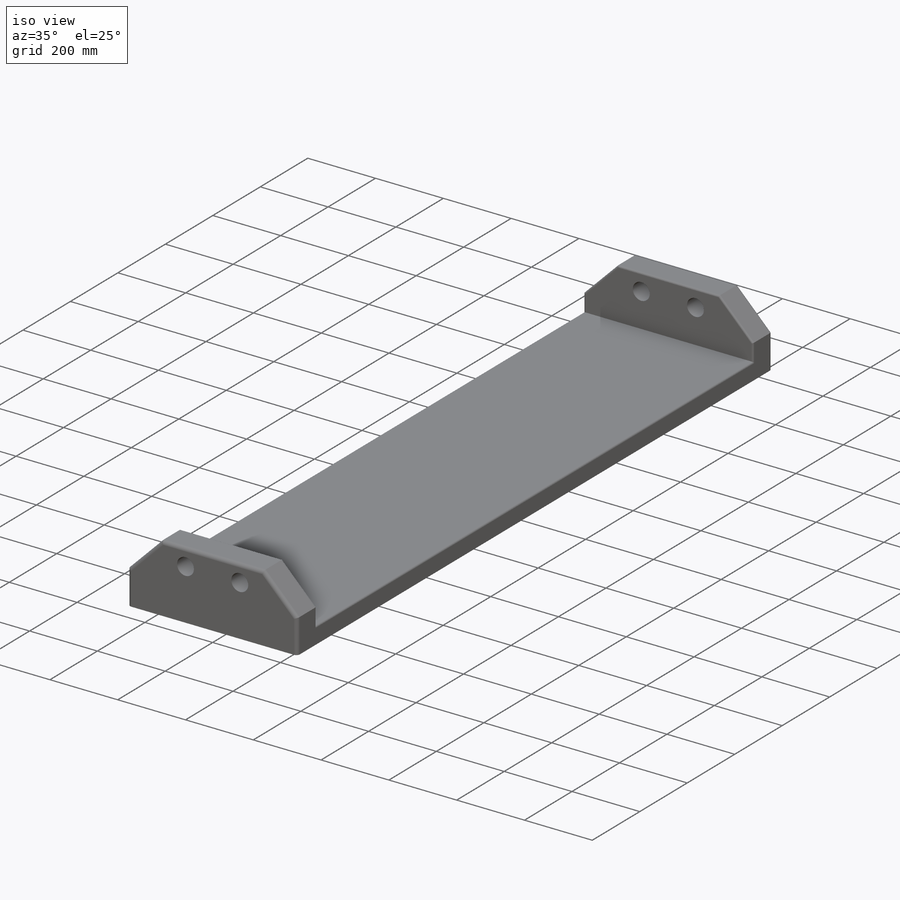
[diagram: iso view]
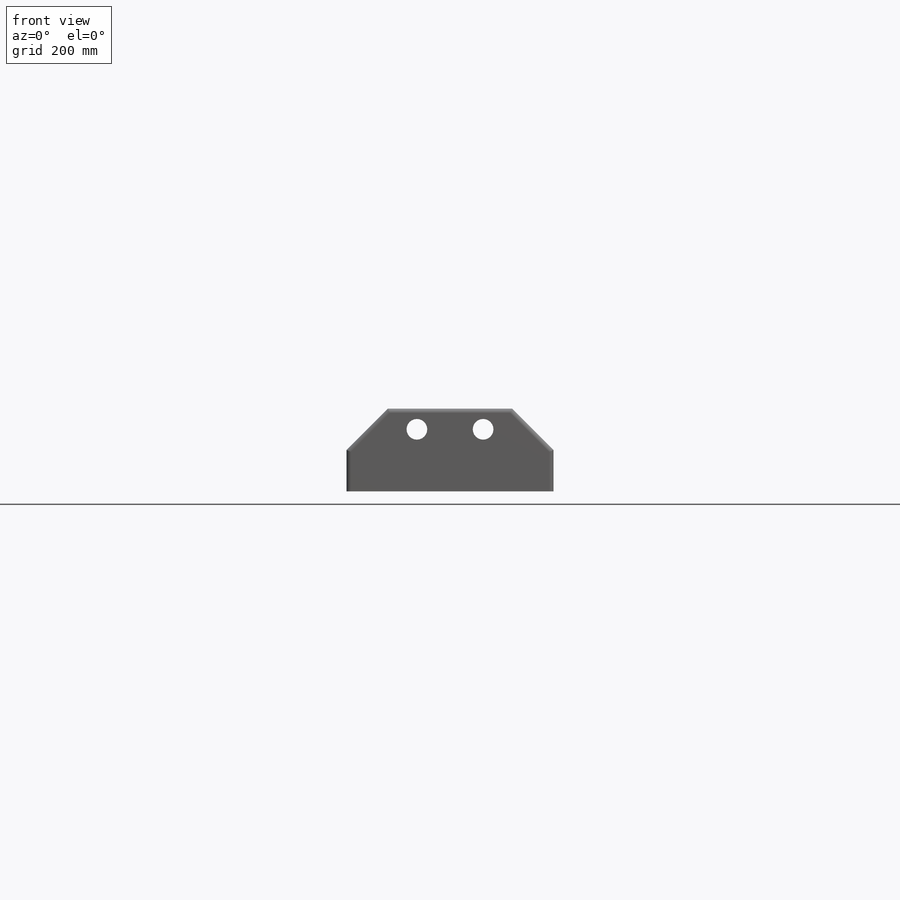
[diagram: front view]
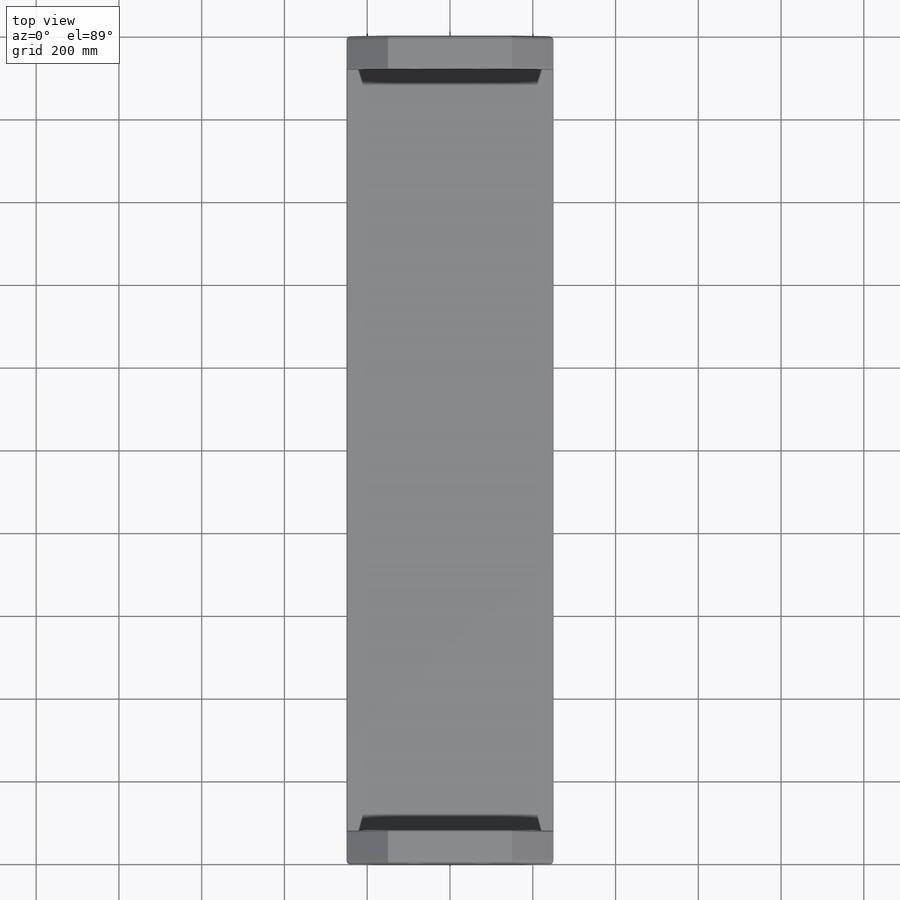
[diagram: top view]
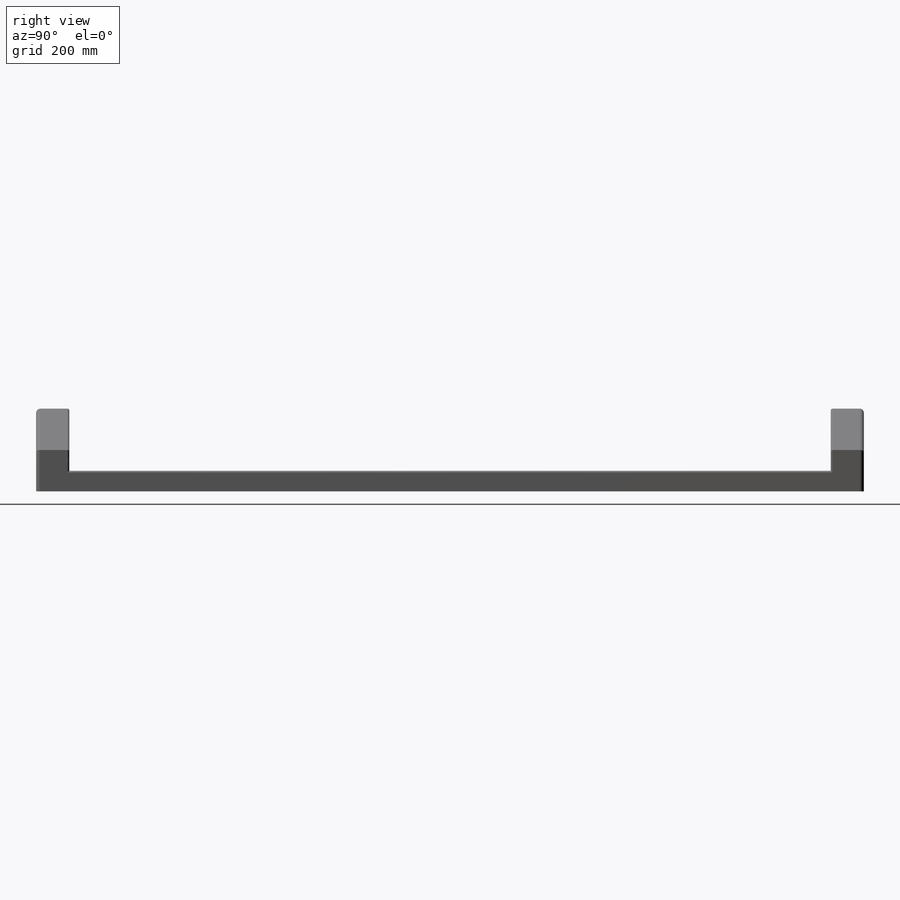
[diagram: right view]
SOLIDWORKS PART (.sldprt)
format: sldprt  version: not decoded by parser v0  size: 244,736 bytes
history: native  units: mm
features: sketch x4, cut_extrude x3, fillet x3, material x1, extrude x1 (+13 scaffold rows collapsed)
feature tree (25):
  scaffold x13  (default folders/planes/origin — collapsed)
  material  "Material <not specified>"
  sketch  "Sketch1"  dims[D1=500.0mm D2=200.0mm]
  extrude  "Boss-Extrude1"  Depth=2000mm
  sketch  "Sketch2"  dims[c1.D1=200.0mm c2.D1=45.0deg c2.D2=~128.727845mm c3.D2=45.0deg c3.D3=300.0mm]
  sketch  "Sketch3"  dims[D1=80.0mm D2=80.0mm D3=150.0mm]
  cut_extrude  "Cut-Extrude1"  Depth=1000mm
  cut_extrude  "Cut-Extrude2"  [1 undecoded]
  sketch  "Sketch4"  dims[D3=50.0mm D1=80.0mm D2=80.0mm]
  cut_extrude  "Cut-Extrude3"  [1 undecoded]
  fillet  "Fillet1"  Radius=10mm
  fillet  "Fillet2"  Radius=10mm
  fillet  "Fillet4"  Radius=5mm
decode coverage: 9 of 11 modeling features carry decoded parameters
note: ~ marks probable driven/reference dimensions
note: 2 parameter values undecoded
note: suppression state not decoded; provenance and decode notes live in map.json
